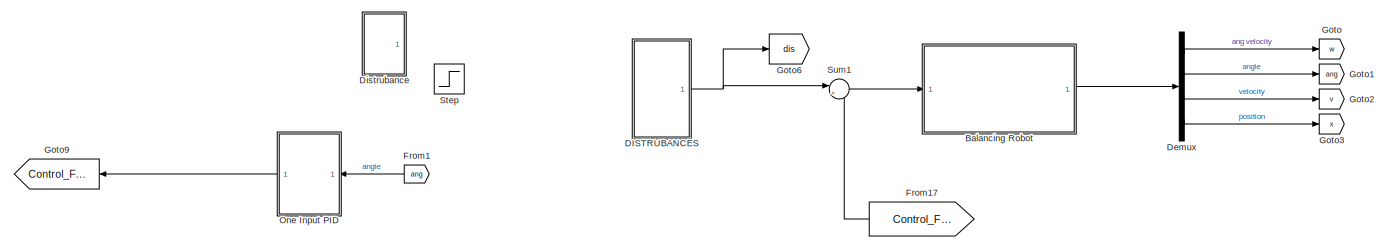
[diagram: root canvas - part 1/3, full width, top band]
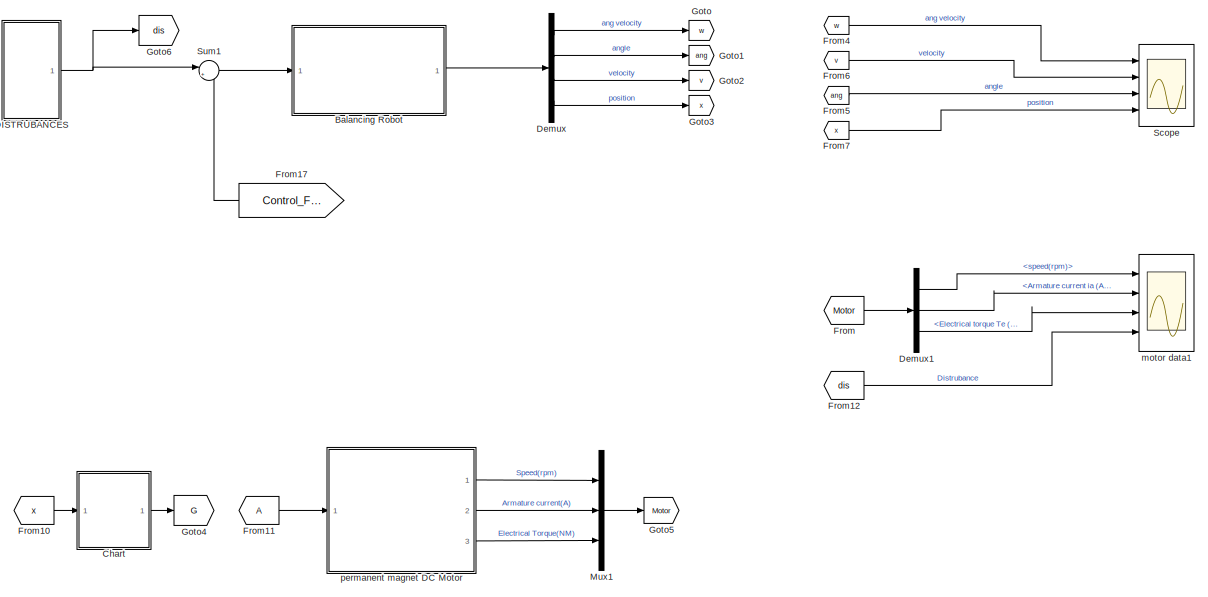
[diagram: root canvas - part 2/3, right side, full height]
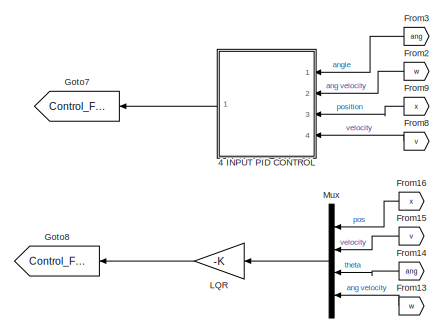
[diagram: root canvas - part 3/3, bottom left region]
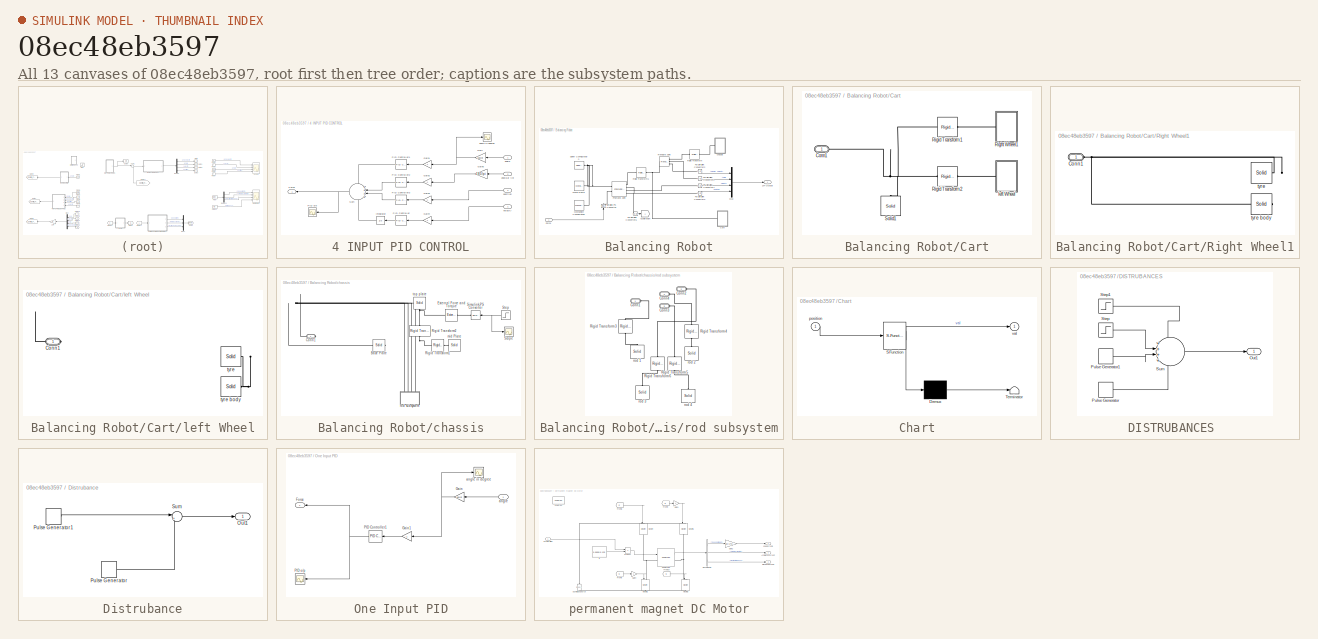
[diagram: thumbnail index - all 13 canvases of the model, root first then tree order]
MODEL slx_08ec48eb3597
KIND model
CONFIG AbsTol = auto
CONFIG EnableMultiTasking = on
CONFIG FixedStep = auto
CONFIG MaxStep = auto
CONFIG MinStep = auto
CONFIG RelTol = 1e-3
CONFIG SampleTimeConstraint = Unconstrained
CONFIG Solver = VariableStepAuto
CONFIG SolverName = VariableStepAuto
CONFIG StartTime = 0.0
CONFIG StopTime = 10.0
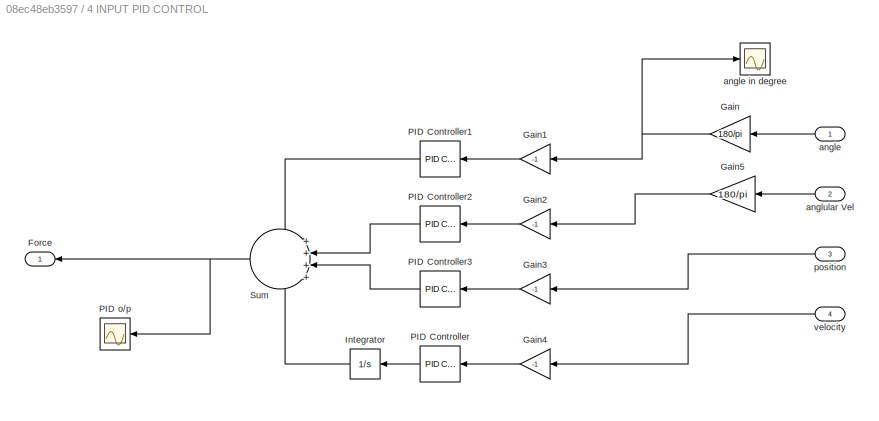
BLOCK [SubSystem] 4 INPUT PID CONTROL
  Commented = on
  Ports = [4, 1]
  RequestExecContextInheritance = off
BLOCK [Scope] 4 INPUT PID CONTROL/	PID o//p
  Floating = off
  NumInputPorts = 1
  Ports = [1]
  ScopeSpecificationString = Simulink.scopes.TimeScopeBlockCfg('CurrentConfiguration', extmgr.ConfigurationSet(extmgr.Configuration('Core','General UI',true),extmgr.Configuration('Core','Source UI',true),extmgr.Configuration('Sources','WiredSimulink',true),extmgr.Configuration('Visuals','Time Domain',true,'SerializedDisplays',{struct('MinYLimReal','-3134.34097','MaxYLimReal','3138.39116','YLabelReal','','MinYLimMag','  0.0000...<+1385ch>
BLOCK [Outport] 4 INPUT PID CONTROL/Force
  VectorParamsAs1DForOutWhenUnconnected = off
BLOCK [Gain] 4 INPUT PID CONTROL/Gain
  Gain = 180/pi
BLOCK [Gain] 4 INPUT PID CONTROL/Gain1
  Gain = -1
BLOCK [Gain] 4 INPUT PID CONTROL/Gain2
  Gain = -1
BLOCK [Gain] 4 INPUT PID CONTROL/Gain3
  Gain = -1
BLOCK [Gain] 4 INPUT PID CONTROL/Gain4
  Gain = -1
BLOCK [Gain] 4 INPUT PID CONTROL/Gain5
  Gain = 180/pi
BLOCK [Integrator] 4 INPUT PID CONTROL/Integrator
  Ports = [1, 1]
BLOCK [Reference] 4 INPUT PID CONTROL/PID Controller  REF=simulink/Continuous/PID Controller
  Ports = [1, 1]
  SourceBlock = simulink/Continuous/PID Controller
  SourceProductBaseCode = SL
  SourceType = PID 1dof
BLOCK [Reference] 4 INPUT PID CONTROL/PID Controller1  REF=simulink/Continuous/PID Controller
  Ports = [1, 1]
  SourceBlock = simulink/Continuous/PID Controller
  SourceProductBaseCode = SL
  SourceType = PID 1dof
BLOCK [Reference] 4 INPUT PID CONTROL/PID Controller2  REF=simulink/Continuous/PID Controller
  Ports = [1, 1]
  SourceBlock = simulink/Continuous/PID Controller
  SourceProductBaseCode = SL
  SourceType = PID 1dof
BLOCK [Reference] 4 INPUT PID CONTROL/PID Controller3  REF=simulink/Continuous/PID Controller
  Ports = [1, 1]
  SourceBlock = simulink/Continuous/PID Controller
  SourceProductBaseCode = SL
  SourceType = PID 1dof
BLOCK [Sum] 4 INPUT PID CONTROL/Sum
  Inputs = ++++
  Ports = [4, 1]
BLOCK [Inport] 4 INPUT PID CONTROL/angle
BLOCK [Scope] 4 INPUT PID CONTROL/angle in degree 
  Floating = off
  NumInputPorts = 1
  Ports = [1]
  ScopeSpecificationString = Simulink.scopes.TimeScopeBlockCfg('CurrentConfiguration', extmgr.ConfigurationSet(extmgr.Configuration('Core','General UI',true),extmgr.Configuration('Core','Source UI',true),extmgr.Configuration('Sources','WiredSimulink',true,'DataLoggingVariableName','ScopeData2'),extmgr.Configuration('Visuals','Time Domain',true,'SerializedDisplays',{struct('MinYLimReal','-151.46736','MaxYLimReal','16.82971','Y...<+1404ch>
BLOCK [Inport] 4 INPUT PID CONTROL/anglular Vel
  Port = 2
BLOCK [Inport] 4 INPUT PID CONTROL/position
  Port = 3
BLOCK [Inport] 4 INPUT PID CONTROL/velocity
  Port = 4
BLOCK [SubSystem] Balancing Robot
  Ports = [1, 1]
  RequestExecContextInheritance = off
BLOCK [Outport] Balancing Robot/1x4 Output
BLOCK [Goto] Balancing Robot/Acceleration
  TagVisibility = global
BLOCK [SubSystem] Balancing Robot/Cart
  Ports = [0, 0, 0, 0, 0, 1]
  RequestExecContextInheritance = off
BLOCK [PMIOPort] Balancing Robot/Cart/Conn1
  Side = Left
BLOCK [SubSystem] Balancing Robot/Cart/Right Wheel1
  Ports = [0, 0, 0, 0, 0, 1]
  RequestExecContextInheritance = off
BLOCK [PMIOPort] Balancing Robot/Cart/Right Wheel1/Conn1
  Side = Left
BLOCK [Reference] Balancing Robot/Cart/Right Wheel1/tyre  REF=sm_lib/Body Elements/Solid
  Ports = [0, 0, 0, 0, 0, 0, 1]
  SourceBlock = sm_lib/Body Elements/Solid
  SourceProductBaseCode = MS
  SourceType = Cylindrical Solid
BLOCK [Reference] Balancing Robot/Cart/Right Wheel1/tyre body  REF=sm_lib/Body Elements/Solid
  Ports = [0, 0, 0, 0, 0, 0, 1]
  SourceBlock = sm_lib/Body Elements/Solid
  SourceProductBaseCode = MS
  SourceType = Cylindrical Solid
BLOCK [Reference] Balancing Robot/Cart/Rigid Transform1  REF=sm_lib/Frames and
Transforms/Rigid
Transform
  Ports = [0, 0, 0, 0, 0, 1, 1]
  SourceBlock = sm_lib/Frames and\nTransforms/Rigid\nTransform
  SourceProductBaseCode = MS
  SourceType = Rigid\nTransform
BLOCK [Reference] Balancing Robot/Cart/Rigid Transform2  REF=sm_lib/Frames and
Transforms/Rigid
Transform
  Ports = [0, 0, 0, 0, 0, 1, 1]
  SourceBlock = sm_lib/Frames and\nTransforms/Rigid\nTransform
  SourceProductBaseCode = MS
  SourceType = Rigid\nTransform
BLOCK [Reference] Balancing Robot/Cart/Solid1  REF=sm_lib/Body Elements/Solid
  Ports = [0, 0, 0, 0, 0, 0, 1]
  SourceBlock = sm_lib/Body Elements/Solid
  SourceProductBaseCode = MS
  SourceType = Brick Solid
BLOCK [SubSystem] Balancing Robot/Cart/left Wheel
  Ports = [0, 0, 0, 0, 0, 1]
  RequestExecContextInheritance = off
BLOCK [PMIOPort] Balancing Robot/Cart/left Wheel/Conn1
  Side = Left
BLOCK [Reference] Balancing Robot/Cart/left Wheel/tyre  REF=sm_lib/Body Elements/Solid
  Ports = [0, 0, 0, 0, 0, 0, 1]
  SourceBlock = sm_lib/Body Elements/Solid
  SourceProductBaseCode = MS
  SourceType = Cylindrical Solid
BLOCK [Reference] Balancing Robot/Cart/left Wheel/tyre body  REF=sm_lib/Body Elements/Solid
  Ports = [0, 0, 0, 0, 0, 0, 1]
  SourceBlock = sm_lib/Body Elements/Solid
  SourceProductBaseCode = MS
  SourceType = Cylindrical Solid
BLOCK [Inport] Balancing Robot/Force
BLOCK [Reference] Balancing Robot/Mechanism Configuration  REF=sm_lib/Utilities/Mechanism
Configuration
  Ports = [0, 0, 0, 0, 0, 0, 1]
  SourceBlock = sm_lib/Utilities/Mechanism\nConfiguration
  SourceProductBaseCode = MS
  SourceType = Mechanism\nConfiguration
BLOCK [Mux] Balancing Robot/Mux
  DisplayOption = bar
  Ports = [4, 1]
BLOCK [Reference] Balancing Robot/PS-Simulink Converter1  REF=nesl_utility/PS-Simulink
Converter
  Ports = [0, 1, 0, 0, 0, 1]
  SourceBlock = nesl_utility/PS-Simulink\nConverter
  SourceProductBaseCode = SS
  SourceType = PS-Simulink\nConverter
BLOCK [Reference] Balancing Robot/PS-Simulink Converter2  REF=nesl_utility/PS-Simulink
Converter
  Ports = [0, 1, 0, 0, 0, 1]
  SourceBlock = nesl_utility/PS-Simulink\nConverter
  SourceProductBaseCode = SS
  SourceType = PS-Simulink\nConverter
BLOCK [Reference] Balancing Robot/PS-Simulink Converter3  REF=nesl_utility/PS-Simulink
Converter
  Ports = [0, 1, 0, 0, 0, 1]
  SourceBlock = nesl_utility/PS-Simulink\nConverter
  SourceProductBaseCode = SS
  SourceType = PS-Simulink\nConverter
BLOCK [Reference] Balancing Robot/PS-Simulink Converter4  REF=nesl_utility/PS-Simulink
Converter
  Ports = [0, 1, 0, 0, 0, 1]
  SourceBlock = nesl_utility/PS-Simulink\nConverter
  SourceProductBaseCode = SS
  SourceType = PS-Simulink\nConverter
BLOCK [Reference] Balancing Robot/PS-Simulink Converter5  REF=nesl_utility/PS-Simulink
Converter
  Ports = [0, 1, 0, 0, 0, 1]
  SourceBlock = nesl_utility/PS-Simulink\nConverter
  SourceProductBaseCode = SS
  SourceType = PS-Simulink\nConverter
BLOCK [Reference] Balancing Robot/Prismatic Joint  REF=sm_lib/Joints/Prismatic
Joint
  Ports = [0, 0, 0, 0, 0, 2, 4]
  SourceBlock = sm_lib/Joints/Prismatic\nJoint
  SourceProductBaseCode = MS
  SourceType = Prismatic\nJoint
BLOCK [Reference] Balancing Robot/Revolute Joint  REF=sm_lib/Joints/Revolute Joint
  Ports = [0, 0, 0, 0, 0, 1, 3]
  SourceBlock = sm_lib/Joints/Revolute Joint
  SourceProductBaseCode = MS
  SourceType = Revolute Joint
BLOCK [Reference] Balancing Robot/Rigid Transform  REF=sm_lib/Frames and
Transforms/Rigid
Transform
  Ports = [0, 0, 0, 0, 0, 1, 1]
  SourceBlock = sm_lib/Frames and\nTransforms/Rigid\nTransform
  SourceProductBaseCode = MS
  SourceType = Rigid\nTransform
BLOCK [Reference] Balancing Robot/Rigid Transform1  REF=sm_lib/Frames and
Transforms/Rigid
Transform
  Ports = [0, 0, 0, 0, 0, 1, 1]
  SourceBlock = sm_lib/Frames and\nTransforms/Rigid\nTransform
  SourceProductBaseCode = MS
  SourceType = Rigid\nTransform
BLOCK [Reference] Balancing Robot/Simulink-PS Converter  REF=nesl_utility/Simulink-PS
Converter
  Ports = [1, 0, 0, 0, 0, 0, 1]
  SourceBlock = nesl_utility/Simulink-PS\nConverter
  SourceProductBaseCode = SS
  SourceType = Simulink-PS\nConverter
BLOCK [Reference] Balancing Robot/Solver Configuration  REF=nesl_utility/Solver
Configuration
  Ports = [0, 0, 0, 0, 0, 0, 1]
  SourceBlock = nesl_utility/Solver\nConfiguration
  SourceProductBaseCode = SS
  SourceType = Solver\nConfiguration
BLOCK [Reference] Balancing Robot/World Frame  REF=sm_lib/Frames and
Transforms/World Frame
  Ports = [0, 0, 0, 0, 0, 0, 1]
  SourceBlock = sm_lib/Frames and\nTransforms/World Frame
  SourceProductBaseCode = MS
  SourceType = World Frame
BLOCK [SubSystem] Balancing Robot/chassis
  Ports = [0, 0, 0, 0, 0, 1]
  RequestExecContextInheritance = off
BLOCK [Reference] Balancing Robot/chassis/Base Plate  REF=sm_lib/Body Elements/Solid
  Ports = [0, 0, 0, 0, 0, 0, 1]
  SourceBlock = sm_lib/Body Elements/Solid
  SourceProductBaseCode = MS
  SourceType = Brick Solid
BLOCK [PMIOPort] Balancing Robot/chassis/Conn1
  Side = Left
BLOCK [Reference] Balancing Robot/chassis/External Force and Torque  REF=sm_lib/Forces and
Torques/External Force
and Torque
  Commented = on
  Ports = [0, 0, 0, 0, 0, 1, 1]
  SourceBlock = sm_lib/Forces and\nTorques/External Force\nand Torque
  SourceProductBaseCode = MS
  SourceType = External Force\nand Torque
BLOCK [Reference] Balancing Robot/chassis/Rigid Transform1  REF=sm_lib/Frames and
Transforms/Rigid
Transform
  Ports = [0, 0, 0, 0, 0, 1, 1]
  SourceBlock = sm_lib/Frames and\nTransforms/Rigid\nTransform
  SourceProductBaseCode = MS
  SourceType = Rigid\nTransform
BLOCK [Reference] Balancing Robot/chassis/Rigid Transform2  REF=sm_lib/Frames and
Transforms/Rigid
Transform
  Ports = [0, 0, 0, 0, 0, 1, 1]
  SourceBlock = sm_lib/Frames and\nTransforms/Rigid\nTransform
  SourceProductBaseCode = MS
  SourceType = Rigid\nTransform
BLOCK [Scope] Balancing Robot/chassis/Scope
  Commented = on
  Floating = off
  NumInputPorts = 1
  Ports = [1]
  ScopeSpecificationString = Simulink.scopes.TimeScopeBlockCfg('CurrentConfiguration', extmgr.ConfigurationSet(extmgr.Configuration('Core','General UI',true),extmgr.Configuration('Core','Source UI',true),extmgr.Configuration('Sources','WiredSimulink',true,'DataLoggingVariableName','ScopeData1'),extmgr.Configuration('Visuals','Time Domain',true,'SerializedDisplays',{struct('MinYLimReal','-0.125','MaxYLimReal','1.125','YLabelRe...<+1351ch>
BLOCK [Reference] Balancing Robot/chassis/Simulink-PS Converter  REF=nesl_utility/Simulink-PS
Converter
  Commented = on
  Ports = [1, 0, 0, 0, 0, 0, 1]
  SourceBlock = nesl_utility/Simulink-PS\nConverter
  SourceProductBaseCode = SS
  SourceType = Simulink-PS\nConverter
BLOCK [Step] Balancing Robot/chassis/Step
  After = 0
  Before = 1
  Commented = on
  SampleTime = 0
  Time = 0.01
BLOCK [Reference] Balancing Robot/chassis/mid Plate  REF=sm_lib/Body Elements/Solid
  Ports = [0, 0, 0, 0, 0, 0, 1]
  SourceBlock = sm_lib/Body Elements/Solid
  SourceProductBaseCode = MS
  SourceType = Brick Solid
BLOCK [SubSystem] Balancing Robot/chassis/rod subsystem
  Ports = [0, 0, 0, 0, 0, 4]
  RequestExecContextInheritance = off
BLOCK [PMIOPort] Balancing Robot/chassis/rod subsystem/Conn1
  Side = Left
BLOCK [PMIOPort] Balancing Robot/chassis/rod subsystem/Conn2
  Port = 2
  Side = Left
BLOCK [PMIOPort] Balancing Robot/chassis/rod subsystem/Conn3
  Port = 3
  Side = Left
BLOCK [PMIOPort] Balancing Robot/chassis/rod subsystem/Conn4
  Port = 4
  Side = Left
BLOCK [Reference] Balancing Robot/chassis/rod subsystem/Rigid Transform3  REF=sm_lib/Frames and
Transforms/Rigid
Transform
  Ports = [0, 0, 0, 0, 0, 1, 1]
  SourceBlock = sm_lib/Frames and\nTransforms/Rigid\nTransform
  SourceProductBaseCode = MS
  SourceType = Rigid\nTransform
BLOCK [Reference] Balancing Robot/chassis/rod subsystem/Rigid Transform4  REF=sm_lib/Frames and
Transforms/Rigid
Transform
  Ports = [0, 0, 0, 0, 0, 1, 1]
  SourceBlock = sm_lib/Frames and\nTransforms/Rigid\nTransform
  SourceProductBaseCode = MS
  SourceType = Rigid\nTransform
BLOCK [Reference] Balancing Robot/chassis/rod subsystem/Rigid Transform5  REF=sm_lib/Frames and
Transforms/Rigid
Transform
  Ports = [0, 0, 0, 0, 0, 1, 1]
  SourceBlock = sm_lib/Frames and\nTransforms/Rigid\nTransform
  SourceProductBaseCode = MS
  SourceType = Rigid\nTransform
BLOCK [Reference] Balancing Robot/chassis/rod subsystem/Rigid Transform6  REF=sm_lib/Frames and
Transforms/Rigid
Transform
  Ports = [0, 0, 0, 0, 0, 1, 1]
  SourceBlock = sm_lib/Frames and\nTransforms/Rigid\nTransform
  SourceProductBaseCode = MS
  SourceType = Rigid\nTransform
BLOCK [Reference] Balancing Robot/chassis/rod subsystem/rod 1  REF=sm_lib/Body Elements/Solid
  Ports = [0, 0, 0, 0, 0, 0, 1]
  SourceBlock = sm_lib/Body Elements/Solid
  SourceProductBaseCode = MS
  SourceType = Cylindrical Solid
BLOCK [Reference] Balancing Robot/chassis/rod subsystem/rod 2  REF=sm_lib/Body Elements/Solid
  Ports = [0, 0, 0, 0, 0, 0, 1]
  SourceBlock = sm_lib/Body Elements/Solid
  SourceProductBaseCode = MS
  SourceType = Cylindrical Solid
BLOCK [Reference] Balancing Robot/chassis/rod subsystem/rod 3  REF=sm_lib/Body Elements/Solid
  Ports = [0, 0, 0, 0, 0, 0, 1]
  SourceBlock = sm_lib/Body Elements/Solid
  SourceProductBaseCode = MS
  SourceType = Cylindrical Solid
BLOCK [Reference] Balancing Robot/chassis/rod subsystem/rod 4  REF=sm_lib/Body Elements/Solid
  Ports = [0, 0, 0, 0, 0, 0, 1]
  SourceBlock = sm_lib/Body Elements/Solid
  SourceProductBaseCode = MS
  SourceType = Cylindrical Solid
BLOCK [Reference] Balancing Robot/chassis/top plate  REF=sm_lib/Body Elements/Solid
  Ports = [0, 0, 0, 0, 0, 0, 1]
  SourceBlock = sm_lib/Body Elements/Solid
  SourceProductBaseCode = MS
  SourceType = Brick Solid
BLOCK [SubSystem] Chart
  ErrorFcn = Stateflow.Translate.translate
  PermitHierarchicalResolution = ExplicitOnly
  Ports = [1, 1]
  RequestExecContextInheritance = off
  SFBlockType = Chart
  TreatAsAtomicUnit = on
BLOCK [Demux] Chart/ Demux 
  Outputs = 1
  Ports = [1, 1]
BLOCK [S-Function] Chart/ SFunction 
  EnableBusSupport = on
  FunctionName = sf_sfun
  PortCounts = [1 2]
  Ports = [1, 2]
  SFcnIsStateOwnerBlock = off
  SFunctionDeploymentMode = off
  Tag = Stateflow S-Function BALANCING_2018 3
BLOCK [Terminator] Chart/ Terminator 
BLOCK [Inport] Chart/position
BLOCK [Outport] Chart/val
BLOCK [SubSystem] DISTRUBANCES 
  Ports = [0, 1]
  RequestExecContextInheritance = off
BLOCK [Outport] DISTRUBANCES /Out1
  VectorParamsAs1DForOutWhenUnconnected = off
BLOCK [DiscretePulseGenerator] DISTRUBANCES /Pulse Generator
  Amplitude = 1000
  Period = 5
  Ports = [0, 1]
  PulseType = Time based
  PulseWidth = 0.1
BLOCK [DiscretePulseGenerator] DISTRUBANCES /Pulse Generator1
  Amplitude = -1000
  Period = 5
  PhaseDelay = 2.5
  Ports = [0, 1]
  PulseType = Time based
  PulseWidth = 0.1
BLOCK [Step] DISTRUBANCES /Step
  After = 10
  SampleTime = 0
  Time = 0.1
BLOCK [Step] DISTRUBANCES /Step1
  After = 0
  Before = 10
  SampleTime = 0
  Time = 10
BLOCK [Sum] DISTRUBANCES /Sum
  Inputs = ++++
  Ports = [4, 1]
BLOCK [Demux] Demux
  Ports = [1, 4]
BLOCK [Demux] Demux1
  Outputs = 3
  Ports = [1, 3]
BLOCK [SubSystem] Distrubance
  Commented = on
  Ports = [0, 1]
  RequestExecContextInheritance = off
BLOCK [Outport] Distrubance/Out1
BLOCK [DiscretePulseGenerator] Distrubance/Pulse Generator
  Amplitude = 1000
  Period = 10
  Ports = [0, 1]
  PulseType = Time based
  PulseWidth = 0.05
BLOCK [DiscretePulseGenerator] Distrubance/Pulse Generator1
  Amplitude = -1000
  Period = 10
  PhaseDelay = 5
  Ports = [0, 1]
  PulseType = Time based
  PulseWidth = 0.05
BLOCK [Sum] Distrubance/Sum
  Inputs = |++
  Ports = [2, 1]
BLOCK [From] From
  GotoTag = Motor
BLOCK [From] From1
  Commented = on
  GotoTag = ang
BLOCK [From] From10
  GotoTag = x
BLOCK [From] From11
  TagVisibility = global
BLOCK [From] From12
  GotoTag = dis
BLOCK [From] From13
  GotoTag = w
BLOCK [From] From14
  GotoTag = ang
BLOCK [From] From15
  GotoTag = v
BLOCK [From] From16
  GotoTag = x
BLOCK [From] From17
  GotoTag = Control_Force
BLOCK [From] From2
  Commented = on
  GotoTag = w
BLOCK [From] From3
  Commented = on
  GotoTag = ang
BLOCK [From] From4
  GotoTag = w
BLOCK [From] From5
  GotoTag = ang
BLOCK [From] From6
  GotoTag = v
BLOCK [From] From7
  GotoTag = x
BLOCK [From] From8
  Commented = on
  GotoTag = v
BLOCK [From] From9
  Commented = on
  GotoTag = x
BLOCK [Goto] Goto
  GotoTag = w
BLOCK [Goto] Goto1
  GotoTag = ang
BLOCK [Goto] Goto2
  GotoTag = v
BLOCK [Goto] Goto3
  GotoTag = x
BLOCK [Goto] Goto4
  GotoTag = G
  TagVisibility = global
BLOCK [Goto] Goto5
  GotoTag = Motor
BLOCK [Goto] Goto6
  GotoTag = dis
BLOCK [Goto] Goto7
  Commented = on
  GotoTag = Control_Force
BLOCK [Goto] Goto8
  GotoTag = Control_Force
BLOCK [Goto] Goto9
  Commented = on
  GotoTag = Control_Force
BLOCK [Gain] LQR
  Gain = -K
  Multiplication = Matrix(K*u)
BLOCK [Mux] Mux
  DisplayOption = bar
  Ports = [4, 1]
BLOCK [Mux] Mux1
  DisplayOption = bar
  Inputs = 3
  Ports = [3, 1]
BLOCK [SubSystem] One Input PID
  Commented = on
  Ports = [1, 1]
  RequestExecContextInheritance = off
BLOCK [Scope] One Input PID/	PID o//p
  Floating = off
  NumInputPorts = 1
  Ports = [1]
  ScopeSpecificationString = Simulink.scopes.TimeScopeBlockCfg('CurrentConfiguration', extmgr.ConfigurationSet(extmgr.Configuration('Core','General UI',true),extmgr.Configuration('Core','Source UI',true),extmgr.Configuration('Sources','WiredSimulink',true),extmgr.Configuration('Visuals','Time Domain',true,'SerializedDisplays',{struct('MinYLimReal','-3134.34097','MaxYLimReal','3138.39116','YLabelReal','','MinYLimMag','  0.0000...<+1385ch>
BLOCK [Outport] One Input PID/Force
  VectorParamsAs1DForOutWhenUnconnected = off
BLOCK [Gain] One Input PID/Gain
  Gain = 180/pi
BLOCK [Gain] One Input PID/Gain1
  Gain = -1
BLOCK [Reference] One Input PID/PID Controller1  REF=simulink/Continuous/PID Controller
  Ports = [1, 1]
  SourceBlock = simulink/Continuous/PID Controller
  SourceProductBaseCode = SL
  SourceType = PID 1dof
BLOCK [Inport] One Input PID/angle
BLOCK [Scope] One Input PID/angle in degree 
  Floating = off
  NumInputPorts = 1
  Ports = [1]
  ScopeSpecificationString = Simulink.scopes.TimeScopeBlockCfg('CurrentConfiguration', extmgr.ConfigurationSet(extmgr.Configuration('Core','General UI',true),extmgr.Configuration('Core','Source UI',true),extmgr.Configuration('Sources','WiredSimulink',true,'DataLoggingVariableName','ScopeData2'),extmgr.Configuration('Visuals','Time Domain',true,'SerializedDisplays',{struct('MinYLimReal','-151.46736','MaxYLimReal','16.82971','Y...<+1404ch>
BLOCK [Scope] Scope
  Floating = off
  NumInputPorts = 4
  Ports = [4]
  ScopeSpecificationString = Simulink.scopes.TimeScopeBlockCfg('CurrentConfiguration', extmgr.ConfigurationSet(extmgr.Configuration('Core','General UI',true),extmgr.Configuration('Core','Source UI',true),extmgr.Configuration('Sources','WiredSimulink',true,'DataLoggingVariableName','ScopeData1'),extmgr.Configuration('Visuals','Time Domain',true,'SerializedDisplays',{struct('MinYLimReal','-2869.58906','MaxYLimReal','2867.91538'...<+3522ch>
BLOCK [Step] Step
  After = 0
  Before = 1
  Commented = on
  SampleTime = 0
  Time = 0.1
BLOCK [Sum] Sum1
  Inputs = |++
  Ports = [2, 1]
BLOCK [Scope] motor data1
  Floating = off
  NumInputPorts = 4
  Ports = [4]
  ScopeSpecificationString = Simulink.scopes.TimeScopeBlockCfg('CurrentConfiguration', extmgr.ConfigurationSet(extmgr.Configuration('Core','General UI',true),extmgr.Configuration('Core','Source UI',true),extmgr.Configuration('Sources','WiredSimulink',true,'DataLoggingVariableName','ScopeData2'),extmgr.Configuration('Visuals','Time Domain',true,'SerializedDisplays',{struct('MinYLimReal','-0.33013','MaxYLimReal','0.26485','YLab...<+3471ch>
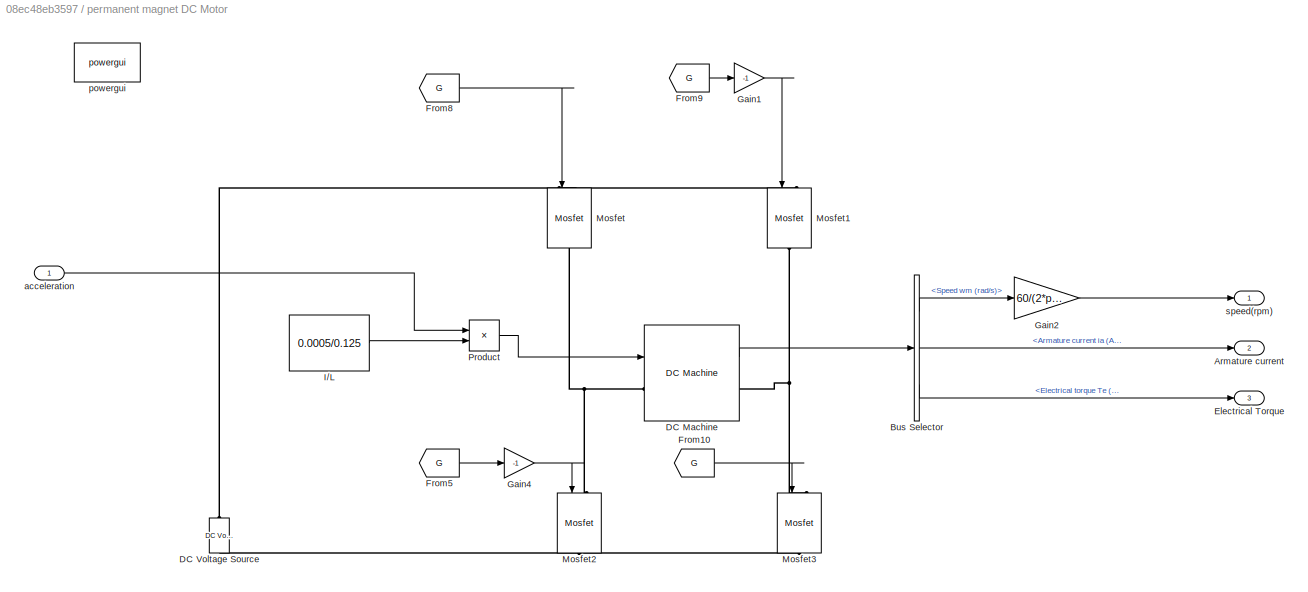
BLOCK [SubSystem] permanent magnet DC Motor
  Ports = [1, 3]
  RequestExecContextInheritance = off
BLOCK [Outport] permanent magnet DC Motor/Armature current
  Port = 2
BLOCK [BusSelector] permanent magnet DC Motor/Bus Selector
  OutputSignals = Speed wm (rad/s),Armature current ia (A),Electrical torque Te (n m)
  Ports = [1, 3]
BLOCK [Reference] permanent magnet DC Motor/DC Machine  REF=powerlib/Machines/DC Machine
  Ports = [1, 1, 0, 0, 0, 1, 1]
  SourceBlock = powerlib/Machines/DC Machine
  SourceProductBaseCode = PS
  SourceType = DC machine
BLOCK [Reference] permanent magnet DC Motor/DC Voltage Source  REF=powerlib/Electrical
Sources/DC Voltage Source
  Ports = [0, 0, 0, 0, 0, 1, 1]
  SourceBlock = powerlib/Electrical\nSources/DC Voltage Source
  SourceProductBaseCode = PS
  SourceType = DC Voltage Source
BLOCK [Outport] permanent magnet DC Motor/Electrical Torque
  Port = 3
BLOCK [From] permanent magnet DC Motor/From10
  GotoTag = G
  TagVisibility = global
BLOCK [From] permanent magnet DC Motor/From5
  GotoTag = G
  TagVisibility = global
BLOCK [From] permanent magnet DC Motor/From8
  GotoTag = G
  TagVisibility = global
BLOCK [From] permanent magnet DC Motor/From9
  GotoTag = G
  TagVisibility = global
BLOCK [Gain] permanent magnet DC Motor/Gain1
  Gain = -1
BLOCK [Gain] permanent magnet DC Motor/Gain2
  Gain = 60/(2*pi)
BLOCK [Gain] permanent magnet DC Motor/Gain4
  Gain = -1
BLOCK [Constant] permanent magnet DC Motor/I//L
  Value = 0.0005/0.125
BLOCK [Reference] permanent magnet DC Motor/Mosfet  REF=powerlib/Power
Electronics/Mosfet
  Ports = [1, 0, 0, 0, 0, 1, 1]
  SourceBlock = powerlib/Power\nElectronics/Mosfet
  SourceProductBaseCode = PS
  SourceType = Mosfet
BLOCK [Reference] permanent magnet DC Motor/Mosfet1  REF=powerlib/Power
Electronics/Mosfet
  Ports = [1, 0, 0, 0, 0, 1, 1]
  SourceBlock = powerlib/Power\nElectronics/Mosfet
  SourceProductBaseCode = PS
  SourceType = Mosfet
BLOCK [Reference] permanent magnet DC Motor/Mosfet2  REF=powerlib/Power
Electronics/Mosfet
  Ports = [1, 0, 0, 0, 0, 1, 1]
  SourceBlock = powerlib/Power\nElectronics/Mosfet
  SourceProductBaseCode = PS
  SourceType = Mosfet
BLOCK [Reference] permanent magnet DC Motor/Mosfet3  REF=powerlib/Power
Electronics/Mosfet
  Ports = [1, 0, 0, 0, 0, 1, 1]
  SourceBlock = powerlib/Power\nElectronics/Mosfet
  SourceProductBaseCode = PS
  SourceType = Mosfet
BLOCK [Product] permanent magnet DC Motor/Product
  Ports = [2, 1]
BLOCK [Inport] permanent magnet DC Motor/acceleration
BLOCK [Reference] permanent magnet DC Motor/powergui  REF=powerlib/powergui
  Ports = []
  Priority = 1
  SourceBlock = powerlib/powergui
  SourceProductBaseCode = PS
  SourceType = PSB option menu block
BLOCK [Outport] permanent magnet DC Motor/speed(rpm)
LINE 4 INPUT PID CONTROL/Gain1:1 -> 4 INPUT PID CONTROL/PID Controller1:1
LINE 4 INPUT PID CONTROL/Gain2:1 -> 4 INPUT PID CONTROL/PID Controller2:1
LINE 4 INPUT PID CONTROL/Gain3:1 -> 4 INPUT PID CONTROL/PID Controller3:1
LINE 4 INPUT PID CONTROL/Gain4:1 -> 4 INPUT PID CONTROL/PID Controller:1
LINE 4 INPUT PID CONTROL/Gain5:1 -> 4 INPUT PID CONTROL/Gain2:1
NET 4 INPUT PID CONTROL/Gain:1 -> 4 INPUT PID CONTROL/Gain1:1, 4 INPUT PID CONTROL/angle in degree :1
LINE 4 INPUT PID CONTROL/Integrator:1 -> 4 INPUT PID CONTROL/Sum:4
LINE 4 INPUT PID CONTROL/PID Controller1:1 -> 4 INPUT PID CONTROL/Sum:1
LINE 4 INPUT PID CONTROL/PID Controller2:1 -> 4 INPUT PID CONTROL/Sum:2
LINE 4 INPUT PID CONTROL/PID Controller3:1 -> 4 INPUT PID CONTROL/Sum:3
LINE 4 INPUT PID CONTROL/PID Controller:1 -> 4 INPUT PID CONTROL/Integrator:1
NET 4 INPUT PID CONTROL/Sum:1 -> 4 INPUT PID CONTROL/	PID o//p:1, 4 INPUT PID CONTROL/Force:1
LINE 4 INPUT PID CONTROL/angle:1 -> 4 INPUT PID CONTROL/Gain:1
LINE 4 INPUT PID CONTROL/anglular Vel:1 -> 4 INPUT PID CONTROL/Gain5:1
LINE 4 INPUT PID CONTROL/position:1 -> 4 INPUT PID CONTROL/Gain3:1
LINE 4 INPUT PID CONTROL/velocity:1 -> 4 INPUT PID CONTROL/Gain4:1
LINE 4 INPUT PID CONTROL:1 -> Goto7:1
LINE Balancing Robot/Force:1 -> Balancing Robot/Simulink-PS Converter:1
LINE Balancing Robot/Mux:1 -> Balancing Robot/1x4 Output:1
LINE Balancing Robot/PS-Simulink Converter1:1 -> Balancing Robot/Mux:2
LINE Balancing Robot/PS-Simulink Converter2:1 -> Balancing Robot/Mux:1
LINE Balancing Robot/PS-Simulink Converter3:1 -> Balancing Robot/Mux:4
LINE Balancing Robot/PS-Simulink Converter4:1 -> Balancing Robot/Mux:3
LINE Balancing Robot/PS-Simulink Converter5:1 -> Balancing Robot/Acceleration:1
NET Balancing Robot/chassis/Step:1 -> Balancing Robot/chassis/Scope:1, Balancing Robot/chassis/Simulink-PS Converter:1
LINE Balancing Robot:1 -> Demux:1
LINE Chart:1 -> Goto4:1
LINE DISTRUBANCES /Pulse Generator1:1 -> DISTRUBANCES /Sum:3
LINE DISTRUBANCES /Pulse Generator:1 -> DISTRUBANCES /Sum:4
LINE DISTRUBANCES /Step1:1 -> DISTRUBANCES /Sum:1
LINE DISTRUBANCES /Step:1 -> DISTRUBANCES /Sum:2
LINE DISTRUBANCES /Sum:1 -> DISTRUBANCES /Out1:1
NET DISTRUBANCES :1 -> Goto6:1, Sum1:1
LINE Demux1:1 -> motor data1:1
LINE Demux1:2 -> motor data1:2
LINE Demux1:3 -> motor data1:3
LINE Demux:1 -> Goto:1
LINE Demux:2 -> Goto1:1
LINE Demux:3 -> Goto2:1
LINE Demux:4 -> Goto3:1
LINE Distrubance/Pulse Generator1:1 -> Distrubance/Sum:1
LINE Distrubance/Pulse Generator:1 -> Distrubance/Sum:2
LINE Distrubance/Sum:1 -> Distrubance/Out1:1
LINE From10:1 -> Chart:1
LINE From11:1 -> permanent magnet DC Motor:1
LINE From12:1 -> motor data1:4
LINE From13:1 -> Mux:4
LINE From14:1 -> Mux:3
LINE From15:1 -> Mux:2
LINE From16:1 -> Mux:1
LINE From17:1 -> Sum1:2
LINE From1:1 -> One Input PID:1
LINE From2:1 -> 4 INPUT PID CONTROL:2
LINE From3:1 -> 4 INPUT PID CONTROL:1
LINE From4:1 -> Scope:1
LINE From5:1 -> Scope:3
LINE From6:1 -> Scope:2
LINE From7:1 -> Scope:4
LINE From8:1 -> 4 INPUT PID CONTROL:4
LINE From9:1 -> 4 INPUT PID CONTROL:3
LINE From:1 -> Demux1:1
LINE LQR:1 -> Goto8:1
LINE Mux1:1 -> Goto5:1
LINE Mux:1 -> LQR:1
LINE One Input PID/Gain1:1 -> One Input PID/PID Controller1:1
NET One Input PID/Gain:1 -> One Input PID/Gain1:1, One Input PID/angle in degree :1
NET One Input PID/PID Controller1:1 -> One Input PID/	PID o//p:1, One Input PID/Force:1
LINE One Input PID/angle:1 -> One Input PID/Gain:1
LINE One Input PID:1 -> Goto9:1
LINE Sum1:1 -> Balancing Robot:1
LINE permanent magnet DC Motor/Bus Selector:1 -> permanent magnet DC Motor/Gain2:1
LINE permanent magnet DC Motor/Bus Selector:2 -> permanent magnet DC Motor/Armature current:1
LINE permanent magnet DC Motor/Bus Selector:3 -> permanent magnet DC Motor/Electrical Torque:1
LINE permanent magnet DC Motor/DC Machine:1 -> permanent magnet DC Motor/Bus Selector:1
LINE permanent magnet DC Motor/From10:1 -> permanent magnet DC Motor/Mosfet3:1
LINE permanent magnet DC Motor/From5:1 -> permanent magnet DC Motor/Gain4:1
LINE permanent magnet DC Motor/From8:1 -> permanent magnet DC Motor/Mosfet:1
LINE permanent magnet DC Motor/From9:1 -> permanent magnet DC Motor/Gain1:1
LINE permanent magnet DC Motor/Gain1:1 -> permanent magnet DC Motor/Mosfet1:1
LINE permanent magnet DC Motor/Gain2:1 -> permanent magnet DC Motor/speed(rpm):1
LINE permanent magnet DC Motor/Gain4:1 -> permanent magnet DC Motor/Mosfet2:1
LINE permanent magnet DC Motor/I//L:1 -> permanent magnet DC Motor/Product:2
LINE permanent magnet DC Motor/Product:1 -> permanent magnet DC Motor/DC Machine:1
LINE permanent magnet DC Motor/acceleration:1 -> permanent magnet DC Motor/Product:1
LINE permanent magnet DC Motor:1 -> Mux1:1
LINE permanent magnet DC Motor:2 -> Mux1:2
LINE permanent magnet DC Motor:3 -> Mux1:3
PNET net1: Balancing Robot/Cart/Conn1:RConn1 -- Balancing Robot/Cart/Rigid Transform1:LConn1 -- Balancing Robot/Cart/Rigid Transform2:LConn1 -- Balancing Robot/Cart/Solid1:RConn1
PNET net2: Balancing Robot/Cart/Right Wheel1/Conn1:RConn1 -- Balancing Robot/Cart/Right Wheel1/tyre body:RConn1 -- Balancing Robot/Cart/Right Wheel1/tyre:RConn1
PLINE Balancing Robot/Cart/Right Wheel1:LConn1 -- Balancing Robot/Cart/Rigid Transform1:RConn1
PLINE Balancing Robot/Cart/Rigid Transform2:RConn1 -- Balancing Robot/Cart/left Wheel:LConn1
PNET net3: Balancing Robot/Cart/left Wheel/Conn1:RConn1 -- Balancing Robot/Cart/left Wheel/tyre body:RConn1 -- Balancing Robot/Cart/left Wheel/tyre:RConn1
PNET net4: Balancing Robot/Cart:LConn1 -- Balancing Robot/Revolute Joint:LConn1 -- Balancing Robot/Rigid Transform1:RConn1
PNET net5: Balancing Robot/Mechanism Configuration:RConn1 -- Balancing Robot/Prismatic Joint:LConn1 -- Balancing Robot/Solver Configuration:RConn1 -- Balancing Robot/World Frame:RConn1
PLINE Balancing Robot/PS-Simulink Converter1:LConn1 -- Balancing Robot/Revolute Joint:RConn2
PLINE Balancing Robot/PS-Simulink Converter2:LConn1 -- Balancing Robot/Revolute Joint:RConn3
PLINE Balancing Robot/PS-Simulink Converter3:LConn1 -- Balancing Robot/Prismatic Joint:RConn2
PLINE Balancing Robot/PS-Simulink Converter4:LConn1 -- Balancing Robot/Prismatic Joint:RConn3
PLINE Balancing Robot/PS-Simulink Converter5:LConn1 -- Balancing Robot/Prismatic Joint:RConn4
PLINE Balancing Robot/Prismatic Joint:LConn2 -- Balancing Robot/Simulink-PS Converter:RConn1
PLINE Balancing Robot/Prismatic Joint:RConn1 -- Balancing Robot/Rigid Transform1:LConn1
PLINE Balancing Robot/Revolute Joint:RConn1 -- Balancing Robot/Rigid Transform:LConn1
PLINE Balancing Robot/Rigid Transform:RConn1 -- Balancing Robot/chassis:LConn1
PNET net6: Balancing Robot/chassis/Base Plate:RConn1 -- Balancing Robot/chassis/Conn1:RConn1 -- Balancing Robot/chassis/Rigid Transform1:LConn1 -- Balancing Robot/chassis/Rigid Transform2:LConn1 -- Balancing Robot/chassis/rod subsystem:LConn1 -- Balancing Robot/chassis/rod subsystem:LConn2 -- Balancing Robot/chassis/rod subsystem:LConn3 -- Balancing Robot/chassis/rod subsystem:LConn4
PLINE Balancing Robot/chassis/External Force and Torque:LConn1 -- Balancing Robot/chassis/Simulink-PS Converter:RConn1
PNET net7: Balancing Robot/chassis/External Force and Torque:RConn1 -- Balancing Robot/chassis/Rigid Transform2:RConn1 -- Balancing Robot/chassis/top plate:RConn1
PLINE Balancing Robot/chassis/Rigid Transform1:RConn1 -- Balancing Robot/chassis/mid Plate:RConn1
PLINE Balancing Robot/chassis/rod subsystem/Conn1:RConn1 -- Balancing Robot/chassis/rod subsystem/Rigid Transform3:LConn1
PLINE Balancing Robot/chassis/rod subsystem/Conn2:RConn1 -- Balancing Robot/chassis/rod subsystem/Rigid Transform6:LConn1
PLINE Balancing Robot/chassis/rod subsystem/Conn3:RConn1 -- Balancing Robot/chassis/rod subsystem/Rigid Transform5:LConn1
PLINE Balancing Robot/chassis/rod subsystem/Conn4:RConn1 -- Balancing Robot/chassis/rod subsystem/Rigid Transform4:LConn1
PLINE Balancing Robot/chassis/rod subsystem/Rigid Transform3:RConn1 -- Balancing Robot/chassis/rod subsystem/rod 1:RConn1
PLINE Balancing Robot/chassis/rod subsystem/Rigid Transform4:RConn1 -- Balancing Robot/chassis/rod subsystem/rod 2:RConn1
PLINE Balancing Robot/chassis/rod subsystem/Rigid Transform5:RConn1 -- Balancing Robot/chassis/rod subsystem/rod 4:RConn1
PLINE Balancing Robot/chassis/rod subsystem/Rigid Transform6:RConn1 -- Balancing Robot/chassis/rod subsystem/rod 3:RConn1
PNET net8: permanent magnet DC Motor/DC Machine:LConn1 -- permanent magnet DC Motor/Mosfet2:LConn1 -- permanent magnet DC Motor/Mosfet:RConn1
PNET net9: permanent magnet DC Motor/DC Machine:RConn1 -- permanent magnet DC Motor/Mosfet1:RConn1 -- permanent magnet DC Motor/Mosfet3:LConn1
PNET net10: permanent magnet DC Motor/DC Voltage Source:LConn1 -- permanent magnet DC Motor/Mosfet2:RConn1 -- permanent magnet DC Motor/Mosfet3:RConn1
PNET net11: permanent magnet DC Motor/DC Voltage Source:RConn1 -- permanent magnet DC Motor/Mosfet1:LConn1 -- permanent magnet DC Motor/Mosfet:LConn1
note: NET lines group one-source signal fan-out (src -> all destinations, sorted); 1:1 wires keep LINE; PNET lines group multi-terminal physical nets as a canonical sorted terminal list (undirected conserving connections); 2-terminal nets keep the pairwise PLINE form
CHART Chart states=3 transitions=5
  STATE_LABEL 'test_position\nentry:\npos = position;'
  STATE_LABEL 'state_1\nduring:\npos = position;\nexit:\nval=-1'
  STATE_LABEL 'state_2\nduring:\npos = position;\nexit:\nval=1'
